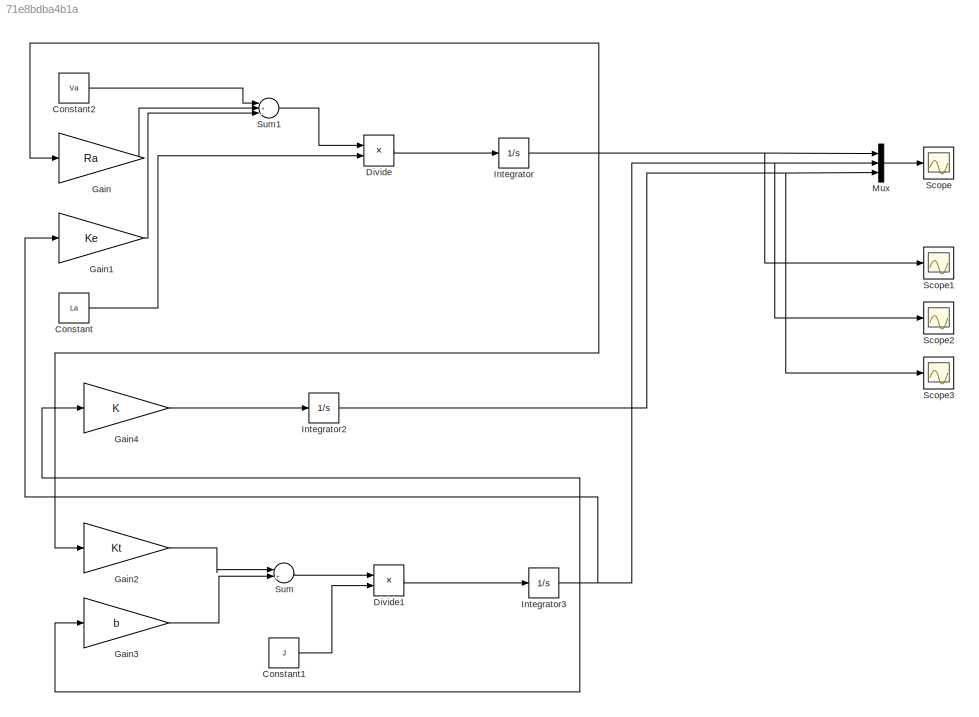
MODEL slx_71e8bdba4b1a
KIND model
CONFIG AbsTol = auto
CONFIG EnableMultiTasking = off
CONFIG FixedStep = auto
CONFIG InitFcn = Ra = 2;\nKt = 0.01;\nb = 0.0012;\nLa = 0.023;\nKe = 0.01;\nJ = 0.001;\nVa = 24;
CONFIG MaxStep = auto
CONFIG MinStep = auto
CONFIG RelTol = 1e-3
CONFIG SampleTimeConstraint = Unconstrained
CONFIG SolverName = VariableStepAuto
CONFIG StartTime = 0.0
CONFIG StopTime = 2
BLOCK [Constant] Constant
  Value = La
BLOCK [Constant] Constant1
  Value = J
BLOCK [Constant] Constant2
  Value = Va
BLOCK [Product] Divide
  Inputs = */
BLOCK [Product] Divide1
  Inputs = */
BLOCK [Gain] Gain
  Gain = Ra
BLOCK [Gain] Gain1
  Gain = Ke
BLOCK [Gain] Gain2
  Gain = Kt
BLOCK [Gain] Gain3
  Gain = b
BLOCK [Gain] Gain4
BLOCK [Integrator] Integrator
BLOCK [Integrator] Integrator2
BLOCK [Integrator] Integrator3
BLOCK [Mux] Mux
  DisplayOption = bar
  Inputs = 3
BLOCK [Scope] Scope
  ActiveDisplayYMaximum = 124.6004233910671
  ActiveDisplayYMinimum = -59.58516129983083
  ContainerLayout = {"WindowBounds":[258,1516,723,612],"gridDimensions":{"w":1,"h":1},"tileCount":1,"tileCoverage":1,"columnWeights":1,"rowWeights":1,"tileOccupancy":{"children":[{"id":"/Scope"},{"id":"/Scope1"},{"id":"/Scope2"},{"id":"/Scope3"}]}}  <repeated x4 — deduplicated; at blocks: Scope, Scope1, Scope2, Scope3>
  Floating = off
  GraphicalSettings = {"Style":{"BackgroundColor":[0.12941176470588237,0.12941176470588237,0.12941176470588237],"AxesColor":[0.07058823529411765,0.07058823529411765,0.07058823529411765],"LabelsColor":[0.8509803921568627,0.8509803921568627,0.8509803921568627],"PreserveColors":false,"Visible":[true,true,true],"LineStyle":["-","-","-"],"LineWidth":[1.5,1.5,1.5],"BarWidth":[0.9,0.9,0.9],"LineColor":["auto","auto","auto"],"...<+2244ch>
  MultipleDisplayCache = [{"MaxYLimMag":78.141503913800008,"MaxYLimReal":124.6004233910671,"MinYLimMag":0,"MinYLimReal":-59.58516129983083,"PlotAsMagnitudePhase":false,"ShowGrid":true,"ShowLegend":false,"Title":"%<SignalLabel>","YLabel":""}]  <repeated x4 — deduplicated; at blocks: Scope, Scope1, Scope2, Scope3>
  NumInputPorts = 1
  Visible = on
  WasSavedAsWebScope = on
  WindowPosition = [258.000000,1.000000,725.000000,615.000000,]
BLOCK [Scope] Scope1
  ActiveDisplayYMaximum = 124.6004233910671
  ActiveDisplayYMinimum = -59.58516129983083
  DataLoggingVariableName = ScopeData1
  Floating = off
  GraphicalSettings = {"Style":{"BackgroundColor":[0.12941176470588237,0.12941176470588237,0.12941176470588237],"AxesColor":[0.07058823529411765,0.07058823529411765,0.07058823529411765],"LabelsColor":[0.8509803921568627,0.8509803921568627,0.8509803921568627],"PreserveColors":false,"Visible":[true],"LineStyle":["-"],"LineWidth":[1.5],"BarWidth":[0.9],"LineColor":["auto"],"LineFaceAlpha":[1],"LineEdgeAlpha":[1],"Marker":...<+1999ch>
  NumInputPorts = 1
  Visible = on
  WasSavedAsWebScope = on
  WindowPosition = [258.000000,1.000000,725.000000,615.000000,]
BLOCK [Scope] Scope2
  ActiveDisplayYMaximum = 124.6004233910671
  ActiveDisplayYMinimum = -59.58516129983083
  DataLoggingVariableName = ScopeData2
  Floating = off
  GraphicalSettings = {"Style":{"BackgroundColor":[0.12941176470588237,0.12941176470588237,0.12941176470588237],"AxesColor":[0.07058823529411765,0.07058823529411765,0.07058823529411765],"LabelsColor":[0.8509803921568627,0.8509803921568627,0.8509803921568627],"PreserveColors":false,"Visible":[true],"LineStyle":["-"],"LineWidth":[1.5],"BarWidth":[0.9],"LineColor":["auto"],"LineFaceAlpha":[1],"LineEdgeAlpha":[1],"Marker":...<+2001ch>
  NumInputPorts = 1
  Visible = on
  WasSavedAsWebScope = on
  WindowPosition = [258.000000,1.000000,725.000000,615.000000,]
BLOCK [Scope] Scope3
  ActiveDisplayYMaximum = 124.6004233910671
  ActiveDisplayYMinimum = -59.58516129983083
  DataLoggingVariableName = ScopeData3
  Floating = off
  GraphicalSettings = {"Style":{"BackgroundColor":[0.12941176470588237,0.12941176470588237,0.12941176470588237],"AxesColor":[0.07058823529411765,0.07058823529411765,0.07058823529411765],"LabelsColor":[0.8509803921568627,0.8509803921568627,0.8509803921568627],"PreserveColors":false,"Visible":[true],"LineStyle":["-"],"LineWidth":[1.5],"BarWidth":[0.9],"LineColor":["auto"],"LineFaceAlpha":[1],"LineEdgeAlpha":[1],"Marker":...<+2001ch>
  NumInputPorts = 1
  Visible = on
  WasSavedAsWebScope = on
  WindowPosition = [258.000000,1.000000,725.000000,615.000000,]
BLOCK [Sum] Sum
  Inputs = |+-
BLOCK [Sum] Sum1
  Inputs = |+--
LINE Constant1:1 -> Divide1:2
LINE Constant2:1 -> Sum1:1
LINE Constant:1 -> Divide:2
LINE Divide1:1 -> Integrator3:1
LINE Divide:1 -> Integrator:1
LINE Gain1:1 -> Sum1:3
LINE Gain2:1 -> Sum:1
LINE Gain3:1 -> Sum:2
LINE Gain4:1 -> Integrator2:1
LINE Gain:1 -> Sum1:2
NET Integrator2:1 -> Mux:3, Scope3:1
NET Integrator3:1 -> Gain1:1, Gain3:1, Gain4:1, Mux:2, Scope2:1
NET Integrator:1 -> Gain2:1, Gain:1, Mux:1, Scope1:1
LINE Mux:1 -> Scope:1
LINE Sum1:1 -> Divide:1
LINE Sum:1 -> Divide1:1
note: NET lines group one-source signal fan-out (src -> all destinations, sorted); 1:1 wires keep LINE
